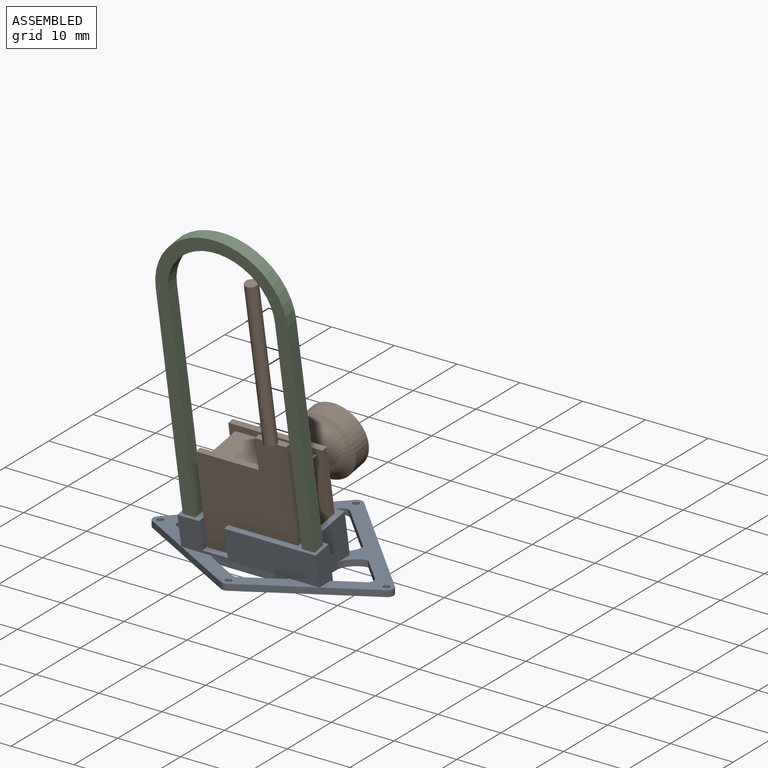
[diagram: assembled view]
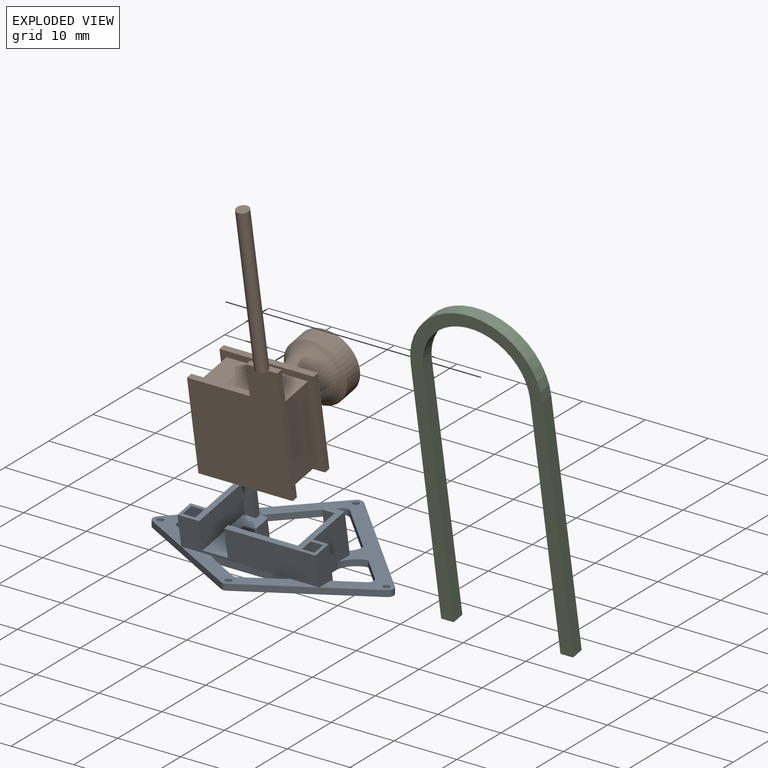
[diagram: exploded view]
GUIDED TOUR — MATED ASSEMBLY (Onshape document 7de400b11707adcfbe20b5c6, AutoMate assembly 7de400b11707adcfbe20b5c6_49190aa5bb5a05a8191853fb_a98708e727d9e8732ac5dd5c_default)

This assembly has 3 components, labeled P0..P2 below (a component is one placed occurrence of a part; the same part can appear more than once), held together by 6 mates. A mate is a constraint between two components; its type names the relative motion it leaves free:
  PLANAR — leaves sliding in the plane through the listed point (normal = the listed direction) and rotation about that normal free.
Axis/direction vectors are unit vectors and 'through' points are millimeter coordinates, both in the assembly's world frame.

MATES
  1. PLANAR "Planar 1": P2 <-> P0, direction (-1.000, 0.000, 0.000) through (-14.07, -12.54, 19.21) mm
  2. PLANAR "Planar 4": P1 <-> P0, direction (0.000, 0.174, -0.985) through (-3.52, -1.75, 0.80) mm
  3. PLANAR "Planar 5": P1 <-> P0, direction (0.000, -0.985, -0.174) through (-3.02, -11.11, 7.78) mm
  4. PLANAR "Planar 2": P2 <-> P0, direction (0.000, -0.985, -0.174) through (-3.57, -14.75, 26.01) mm
  5. PLANAR "Planar 6": P1 <-> P0, direction (1.000, 0.000, 0.000) through (3.98, -3.06, 8.18) mm
  6. PLANAR "Planar 3": P2 <-> P0, direction (0.000, 0.174, -0.985) through (-13.07, -9.06, -0.49) mm

ASSEMBLY ORDER
  1. P0 — the base component [order verified]
  2. P2 [order verified]
  3. P1 [order verified]
Order-tag legend:
  [order verified] — this step's position reverses a verified removal order: the component was checked to insert without passing through the ones already placed.

Of the 3 components, 1 carries the full construction recipe — the FeatureScript program that regenerates the part's solid from scratch; the rest are supplied as boundary geometry only.
Each toured component is shown spotlighted twice — in the assembled view, then in the exploded view, where a leader line traces a displaced component back to its assembled socket (saturated green if recipe-attached, orange if geometry-only; every other component desaturated gray) — followed by its recipe or geometry summary and the mates that hold it.
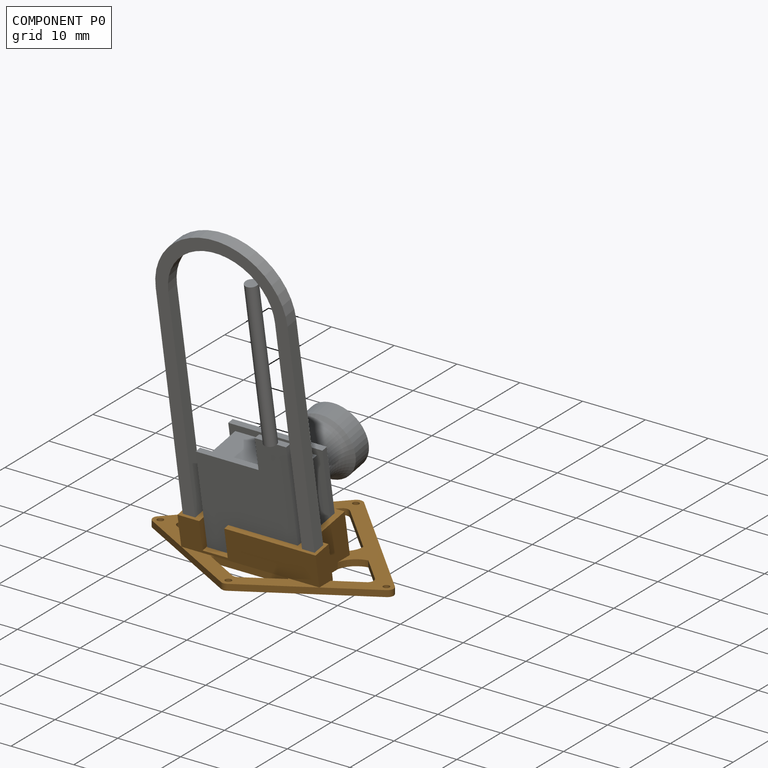
[diagram: component P0 — assembled]
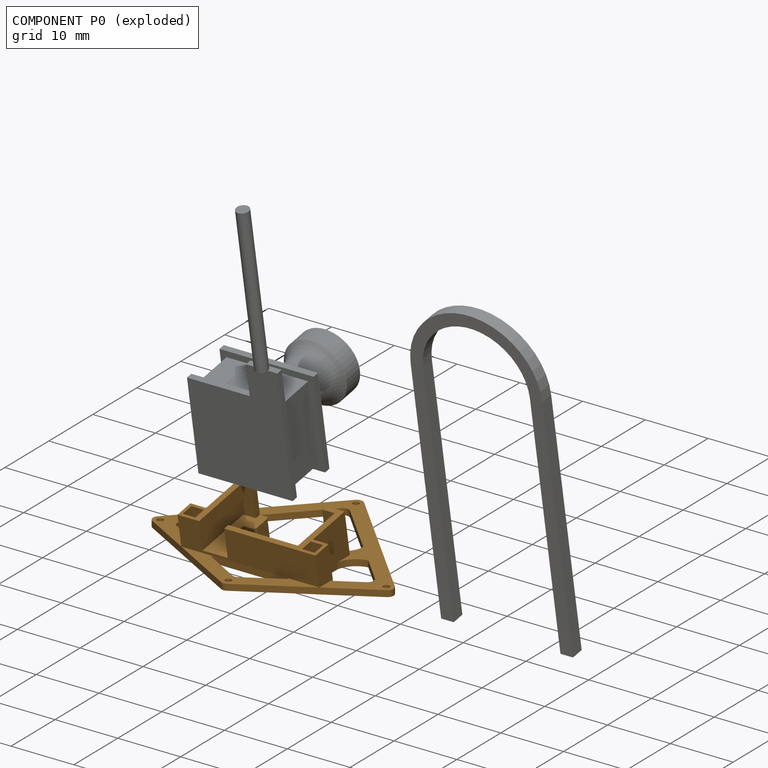
[diagram: component P0 — exploded]
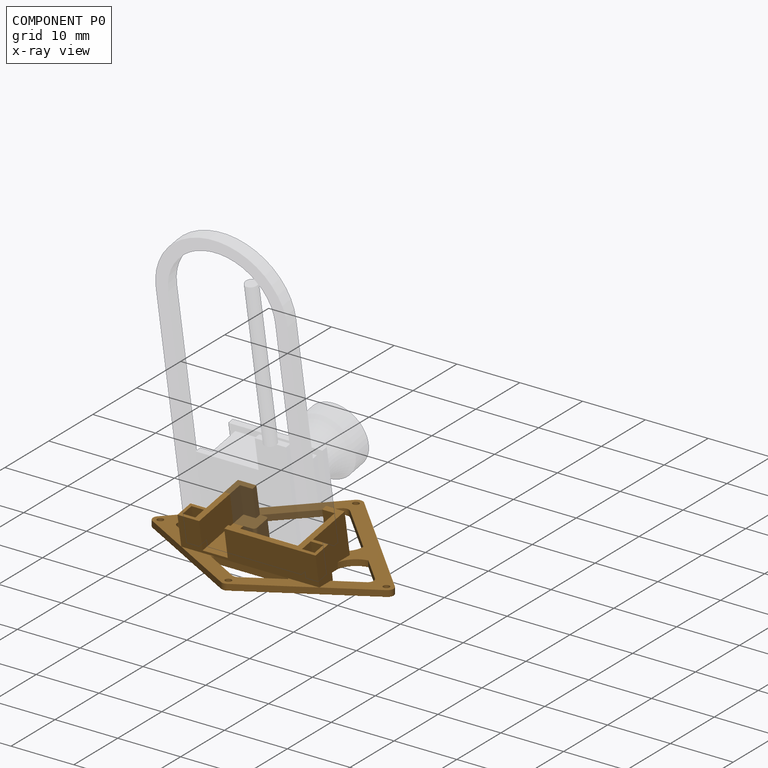
[diagram: component P0 — x-ray view]
COMPONENT P0 — geometry summary (no construction recipe available for this part):
  bounding box: 38.3 x 31.3 x 7.8 mm
  B-rep topology: 1 solid, 81 faces, 470 edges
  volume: 635 mm^3 (7% of its bounding box)
Held by: PLANAR mate "Planar 1" to P2; PLANAR mate "Planar 4" to P1; PLANAR mate "Planar 5" to P1; PLANAR mate "Planar 2" to P2; PLANAR mate "Planar 6" to P1; PLANAR mate "Planar 3" to P2.
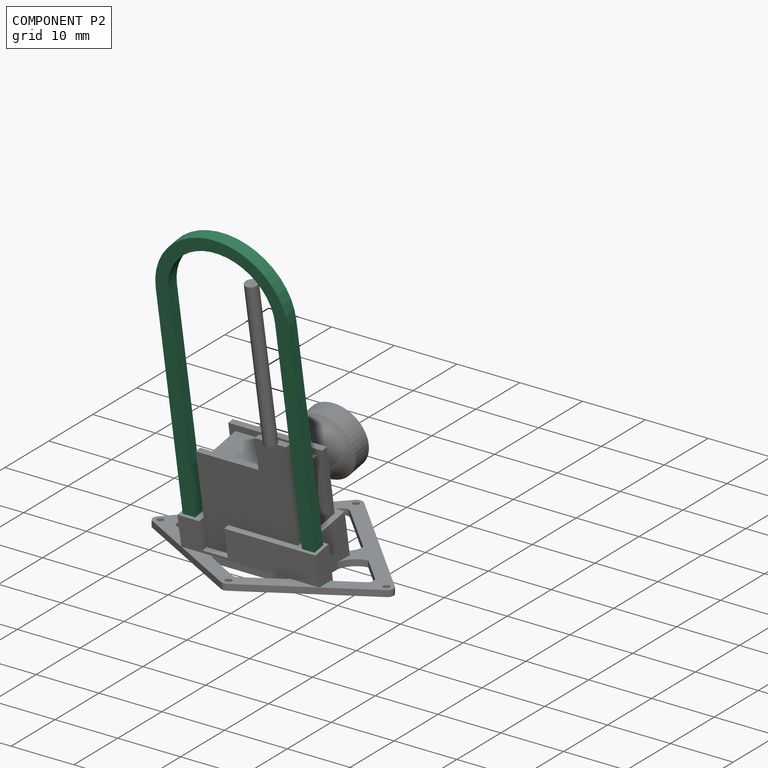
[diagram: component P2 — assembled]
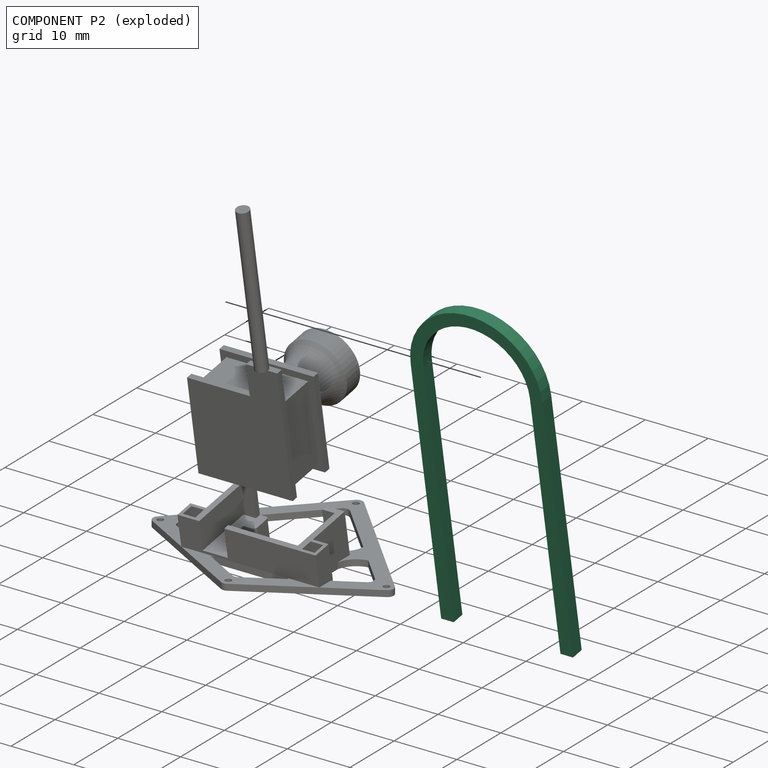
[diagram: component P2 — exploded]
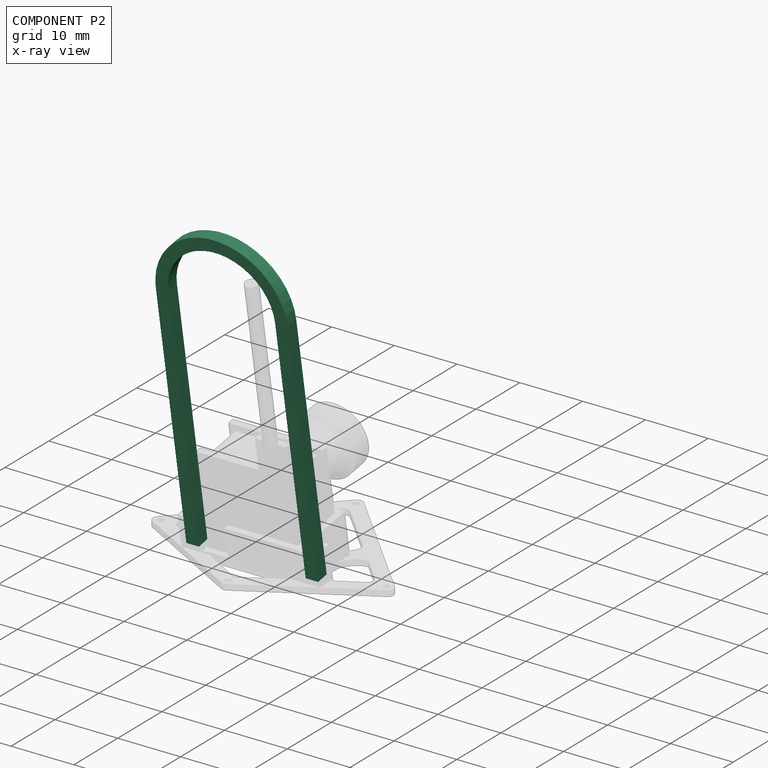
[diagram: component P2 — x-ray view]
COMPONENT P2 — recipe-attached (CADFS 00781824, mesh-verified: the recipe's output STEP matches this component's geometry to below the mesh-comparison resolution (tessellation chordal tolerance ~0.0821 mm)).
Held by: PLANAR mate "Planar 1" to P0; PLANAR mate "Planar 2" to P0; PLANAR mate "Planar 3" to P0.
Construction recipe (FeatureScript — the CAD program that rebuilds this solid; sketch coordinates are in the units given by the * unit suffixes, e.g. mm):

FeatureScript 2130;
import(path : "onshape/std/geometry.fs", version : "2130.0");
import(path : "onshape/std/common.fs", version : "2130.0");
const mm = millimeter;
const VERTEX = EntityType.VERTEX;
const EDGE = EntityType.EDGE;
const FACE = EntityType.FACE;
const BODY = EntityType.BODY;
function v(x, y){return vector(x, y);}
function OD(order){return orderDisambiguation(order);}
function OSD(set){return originalSetDisambiguation(set);}
function TD(topology){return topologyDisambiguation(topology);}
function TDD(query){return trueDependencyDisambiguation(query);}
function sQuery(a, b, c) {return sketchEntityQuery(a, b, c);}

annotation { "Feature Type Name" : "Feature", "Feature Type Description" : "" }
export const myFeature = defineFeature(function(context is Context, id is Id, definition is map)
    precondition{}
    {
        {
            var Q0;
            Q0=qCreatedBy(makeId("Top.planeOp"),FACE);
            var sketch = newSketch(context, id + "F0", { "sketchPlane" : qUnion([Q0])});
            skLineSegment(sketch, "E0", {"start": v(-8.5, 0) * mm, "end": v(8.5, 0) * mm, "construction": true});
            skPoint(sketch, "E1", {"position": v(0, 0) * mm});
            skLineSegment(sketch, "E2", {"start": v(-8.5, 0) * mm, "end": v(-8.5, 40) * mm});
            skArc(sketch, "E3", {"start": v(-8.5, 40) * mm, "mid": v(0, 48.5) * mm, "end": v(8.5, 40) * mm});
            skLineSegment(sketch, "E4", {"start": v(8.5, 0) * mm, "end": v(8.5, 40) * mm});
            skLineSegment(sketch, "E5.0", {"start": v(10.5, 0) * mm, "end": v(10.5, 40) * mm});
            skArc(sketch, "E5.1", {"start": v(-10.5, 40) * mm, "mid": v(0, 50.5) * mm, "end": v(10.5, 40) * mm});
            skLineSegment(sketch, "E5.2", {"start": v(-10.5, 0) * mm, "end": v(-10.5, 40) * mm});
            skLineSegment(sketch, "E6", {"start": v(-10.5, 0) * mm, "end": v(-8.5, 0) * mm});
            skLineSegment(sketch, "E7", {"start": v(8.5, 0) * mm, "end": v(10.5, 0) * mm});
            skSolve(sketch);
        }
        {
            var Q0;
            Q0=makeQuery(id+"F0.imprint","IMPRINT",FACE,{"disambiguationData":[TD([[makeQuery(id+"F0.imprint","IMPRINT",EDGE,{"derivedFrom":sQuery(id+"F0.wireOp",EDGE,"E2")}),1.0]])]});
            extrude(context, id + "F1", {"entities" : qUnion([Q0]), "depth" : 2 * mm, "offsetDistance" : 25 * mm, "symmetric" : true});
        }
    });
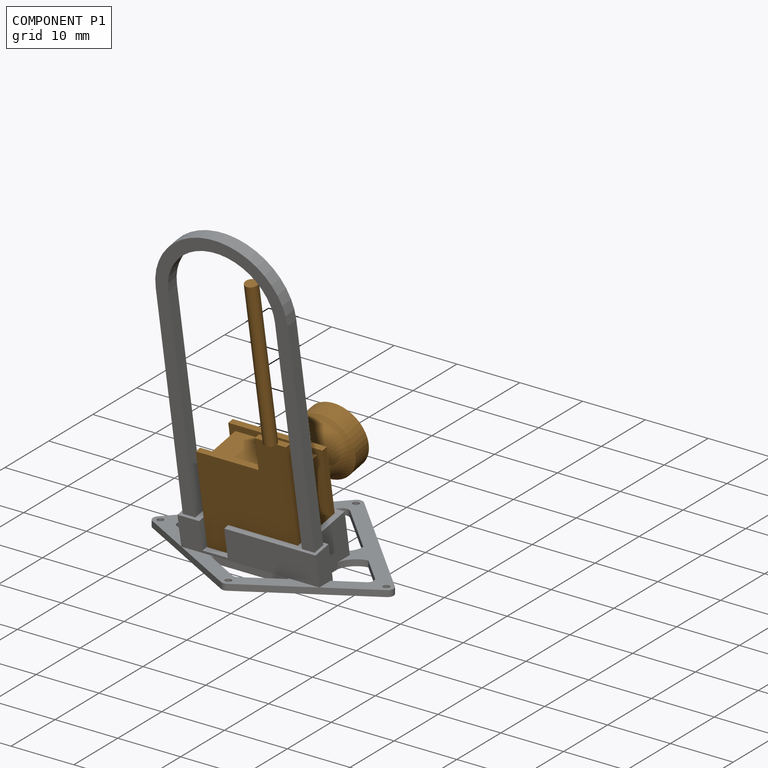
[diagram: component P1 — assembled]
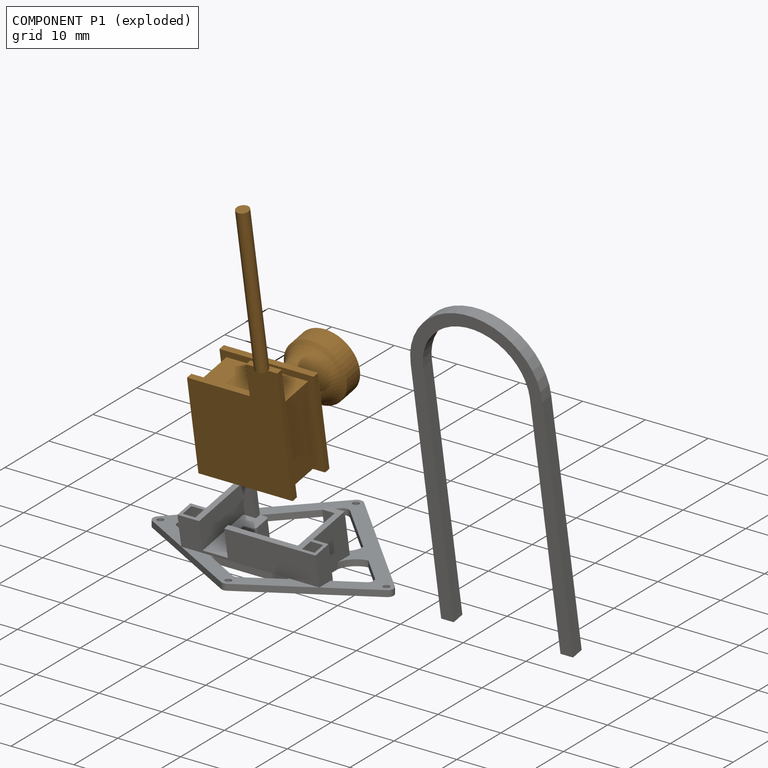
[diagram: component P1 — exploded]
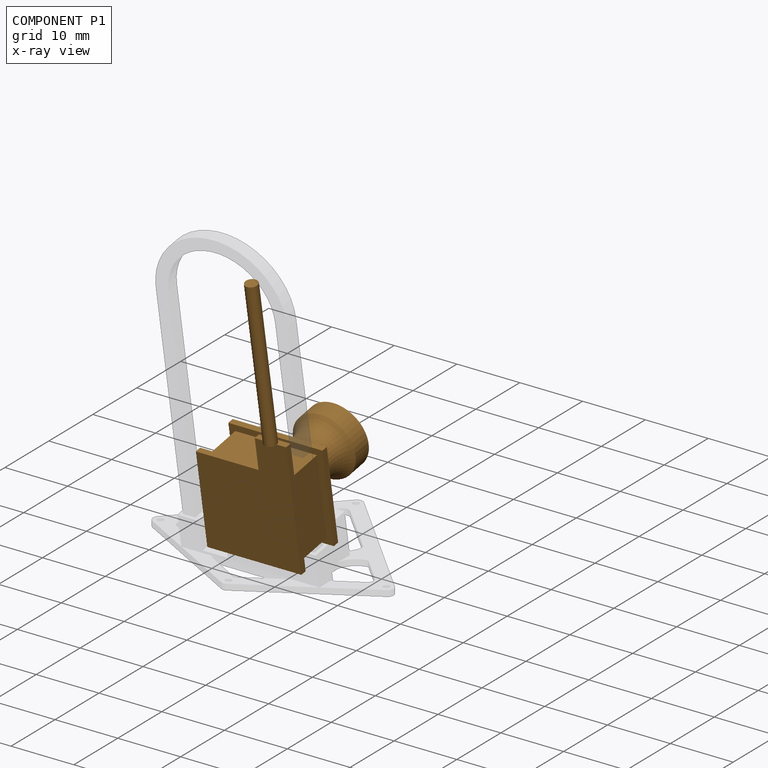
[diagram: component P1 — x-ray view]
COMPONENT P1 — geometry summary (no construction recipe available for this part):
  bounding box: 45.8 x 21.5 x 16.6 mm
  B-rep topology: 1 solid, 34 faces, 152 edges
  volume: 2414 mm^3 (15% of its bounding box)
Held by: PLANAR mate "Planar 4" to P0; PLANAR mate "Planar 5" to P0; PLANAR mate "Planar 6" to P0.
PROVENANCE & LICENSES
Assembly (occurrences, transforms, mates, per-part STEP geometry): AutoMate dataset, Zenodo record 7776208, CC0.
Construction recipes: CADFS (HuggingFace VladPyatov/CADFS, CC-BY-4.0, layered over the ABC dataset), FeatureScript reconstruction programs keyed by ABC model id.
Join: ABC meta listings map ABC model id -> Onshape documentId; within a shared document, parts are matched by geometric signature (bounding-box dims + volume at 0.1% relative tolerance, exact B-rep face/solid counts).
Verification: 1 of this assembly's 3 components carries a recipe attachment, and every attachment is mesh-verified: the CADFS STEP and the AutoMate member STEP were compared as meshes in their shared local frame (symmetric sampled-point-to-mesh distance); worst across the 1 attachment: below the mesh-comparison resolution (tessellation chordal tolerance ~0.0821 mm) on a 55 mm part.
Renders: orthographic iso camera (az 35 / el 25); the floor grid conveys scale (grid pitch printed in each image; no ruler). In the exploded view each component is displaced by its stored offset vector: the offsets alone carry the explosion direction (mate normal/axis signs are not orientation cues and do not encode it), and separation distances are assigned per mate-chain, not proportionally to assembly-order depth.
